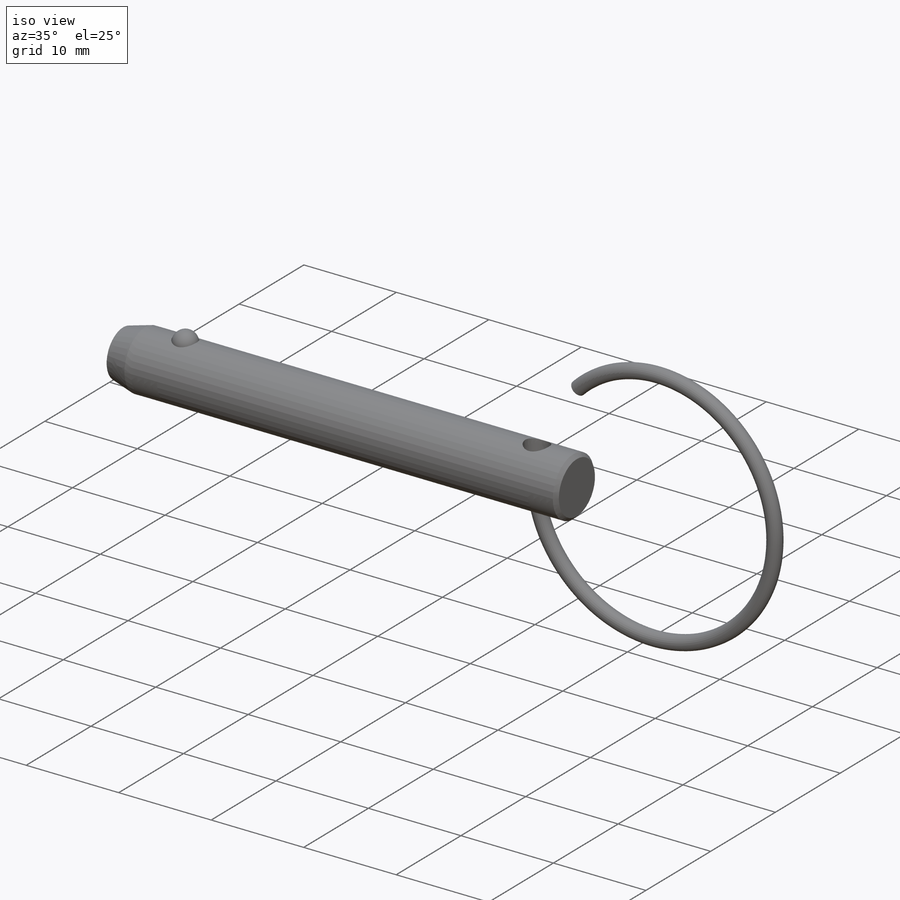
[diagram: iso view]
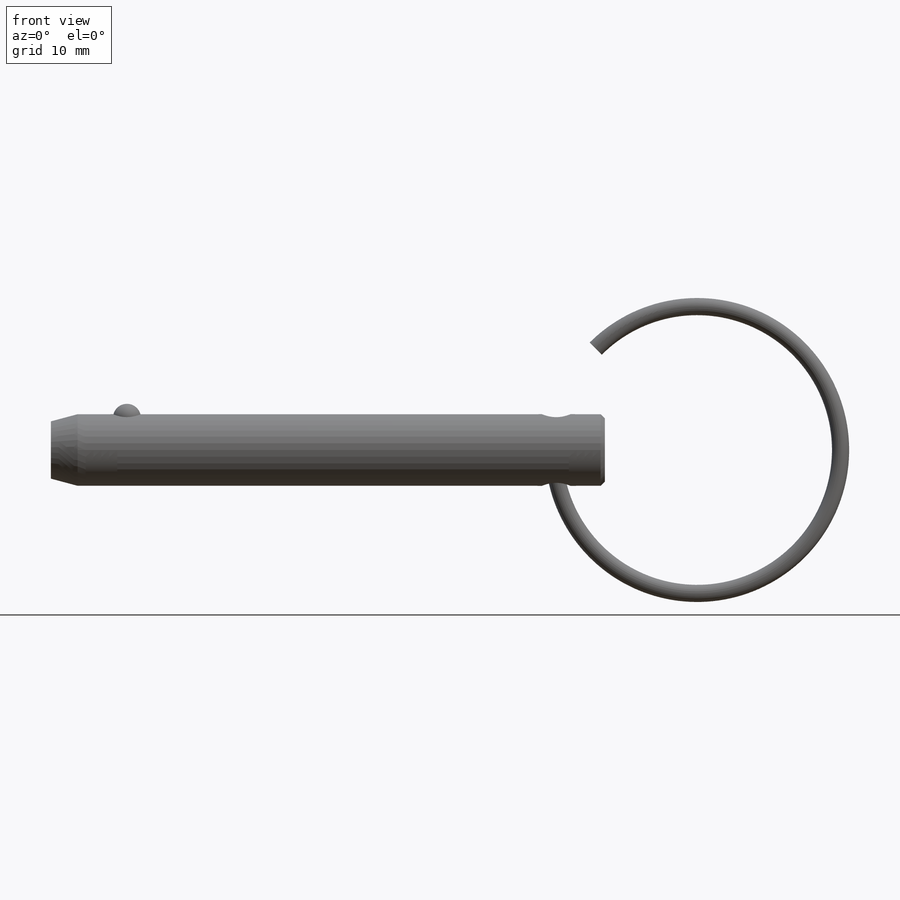
[diagram: front view]
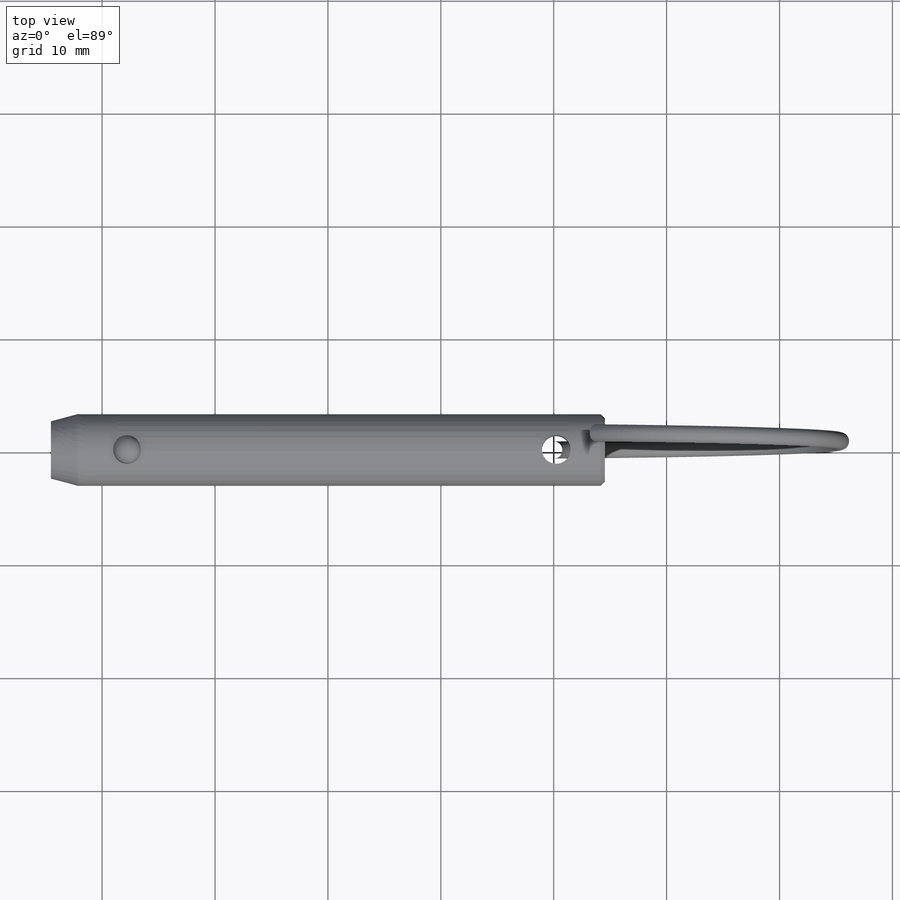
[diagram: top view]
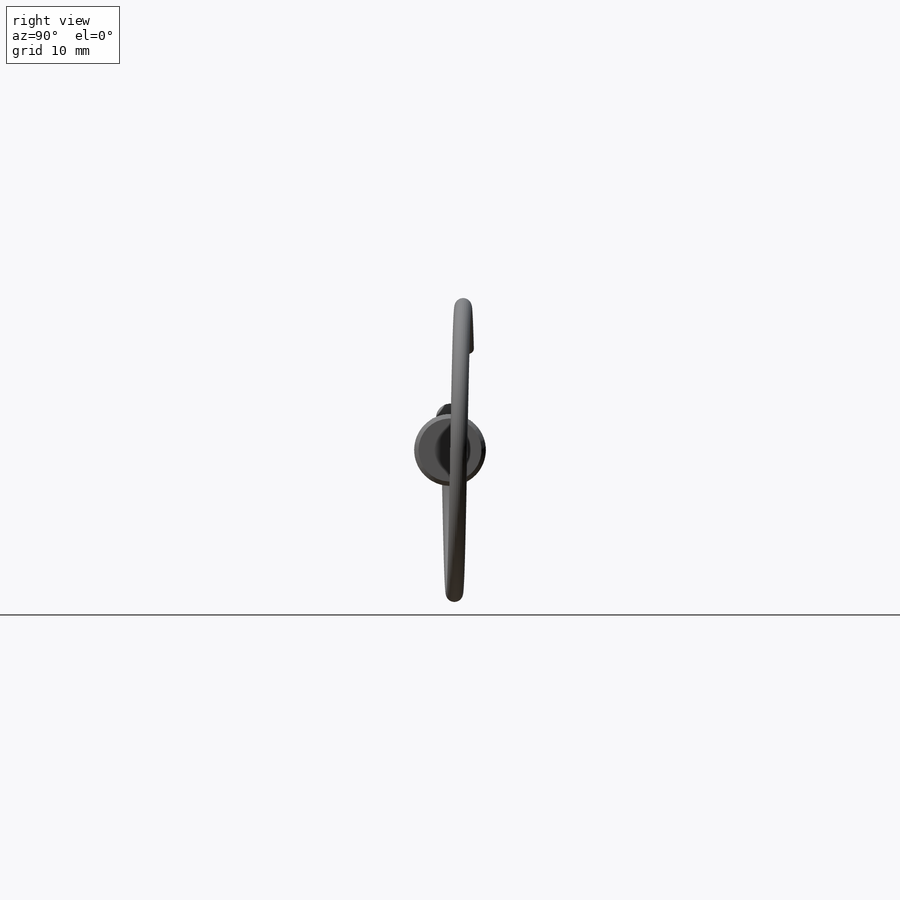
[diagram: right view]
SOLIDWORKS PART (.sldprt)
format: sldprt  version: not decoded by parser v0  size: 786,432 bytes
history: native  units: mm
features: sketch x8, revolve x2, cut_revolve x2, helix x2, sweep x2, material x1 (+11 scaffold rows collapsed)
feature tree (28):
  scaffold x11  (default folders/planes/origin — collapsed)
  material  "Material <not specified>"
  sketch  "Sketch1"  dims[c1.D1=~7.472058mm c1.F=55.499mm c1.D10=~5.325586mm c1.D11=~5.325586mm c2.D10=~2.638425mm c2.A=19.0119mm c2.D1=22.5298mm c2.D2=~3.465817mm c2.B=7.112mm c3.D2=~3.465817mm c3.D1=17.018mm c3.D=21.59mm c3.E=9.525mm c3.D3=64.77mm c3.H=41.275mm c3.Useable Length=25.4mm c4.D3=~3.225487mm c5.D3=25.0deg c5.D6=~25.46985mm c5.D7=~3.891787mm c5.D8=~1.072326mm c5.D9=~5.585642mm c5.D11=0.9144mm c6.D7=21.5392mm c6.G=64.77mm c6.D9=17.018mm c6.D12=34.036mm c6.C=7.9248mm c7.D9=19.0119mm c7.D12=38.0238mm c8.D9=19.0119mm c8.A=6.35mm c9.D9=~1.480905mm c9.A1=15.0deg c9.D12=~1.40716mm c9.J=3.048mm c9.D14=90.0deg c10.D14=34.9758mm c10.D15=~34.536062mm c11.D14=50.9397mm c11.D15=50.9397mm c12.D14=50.9397mm c12.D15=50.9397mm c13.D14=50.9397mm c13.D15=50.9397mm c14.D14=50.9397mm c14.D15=50.9397mm c14.D6=~25.46985mm c14.D12=5.08mm c14.D2=5.715mm c14.H=41.275mm c15.H=35.179mm c15.D4=41.656mm c15.D5=~42.990387mm c15.G=46.228mm c16.D4=1.27mm c16.D5=~1.075267mm c16.G=52.07mm c17.D4=35.179mm c17.K=12.7mm c17.Useable Length=35.56mm c17.E=9.525mm c17.D=5.588mm c17.D3=0.381mm c18.D4=7.112mm c18.D5=~6.010656mm c18.D6=~8.772395mm c19.D5=~8.772395mm c19.D6=~8.772395mm c20.D5=~8.772395mm c20.D6=~8.772395mm c21.D5=~8.772395mm c21.D6=~8.772395mm c21.E=7.2644mm]
  revolve  "Revolve1"  Angle=360deg
  sketch  "Sketch2"  dims[D1=0.0254mm]
  cut_revolve  "Cut-Revolve1"  Angle=360deg
  sketch  "Sketch3"
  revolve  "Revolve2"  Angle=360deg
  sketch  "Sketch4"  dims[D1=2.54mm]
  cut_revolve  "Cut-Revolve2"  Angle=360deg
  sketch  "Sketch5"  dims[c1.R Ring Dia=25.4mm c1.D2=1.524mm c2.R Ring Dia=25.4mm c3.R Ring Dia=25.4mm c3.D2=0.0508mm c3.D3=~2.387656mm c3.D4=0.381mm c3.Ring OD=1.524mm]
  helix  "Helix/Spiral1"  Pitch=1.355725mm
  sketch  "Sketch6"  dims[D1=1.524mm]
  sketch  "Sketch7"
  helix  "Helix/Spiral2"  Pitch=1.355725mm
  sweep  "Sweep1"
  sweep  "Sweep2"
  sketch  "Sketch6<2>"
decode coverage: 11 of 16 modeling features carry decoded parameters
note: ~ marks probable driven/reference dimensions
note: suppression state not decoded; provenance and decode notes live in map.json
